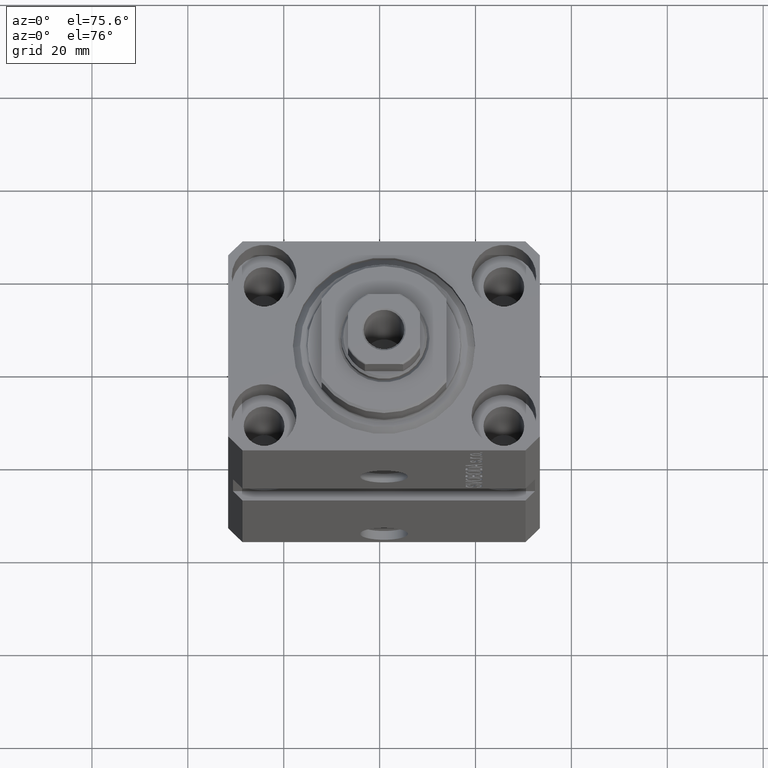
[diagram: clean part render]
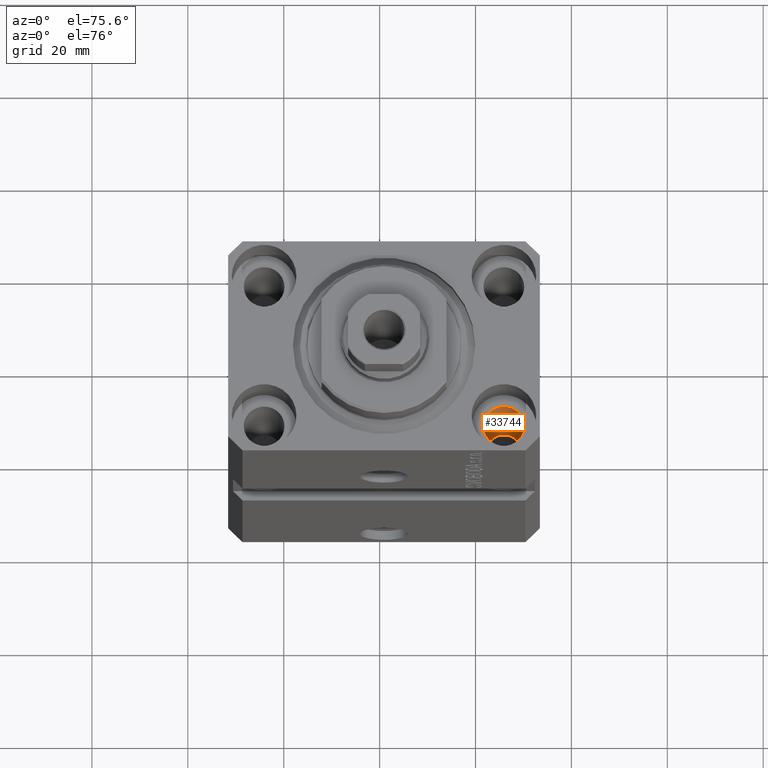
[diagram: same view with one face highlighted and labeled with its STEP entity id]
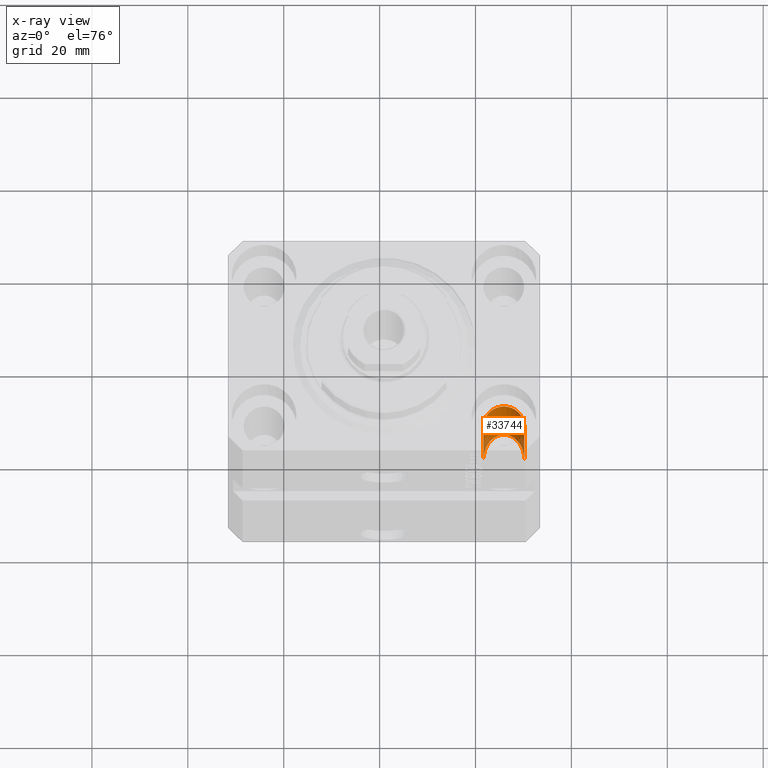
[diagram: x-ray of the same camera — body ghosted, the highlighted face saturated]
A machine part, auxiliary view. The second image highlights one B-rep face of the part: STEP entity #33744.
The next image is the same camera in x-ray: the body ghosted, the highlighted face saturated — about 10% of this face is hidden behind the body in this view.
In plain terms, the highlighted cylindrical surface (edge-blend (fillet) strip) has radius 4.25 mm, axis along (0, 0, 1).
Its self-contained STEP definition (entity closure, byte-faithful):
#747 = EDGE_CURVE ( 'NONE', #21459, #19883, #40305, .T. ) ;
#2236 = ORIENTED_EDGE ( 'NONE', *, *, #38681, .T. ) ;
#2684 = CARTESIAN_POINT ( 'NONE',  ( 20.75000000002254197, -15.00000000000000000, -9.000000000000000000 ) ) ;
#3163 = AXIS2_PLACEMENT_3D ( 'NONE', #22044, #14782, #10426 ) ;
#7472 = EDGE_LOOP ( 'NONE', ( #41150, #39719, #42177, #2236 ) ) ;
#7954 = CARTESIAN_POINT ( 'NONE',  ( 20.75000000001674749, -6.500000000033489655, -28.50000000003348077 ) ) ;
#9381 = VECTOR ( 'NONE', #20375, 1000.000000000000000 ) ;
#10166 = CARTESIAN_POINT ( 'NONE',  ( 20.75000000001675104, -15.00000000000000000, -36.99999999999999289 ) ) ;
#10426 = DIRECTION ( 'NONE',  ( 1.000000000000000000, 0.000000000000000000, 0.000000000000000000 ) ) ;
#11005 = CARTESIAN_POINT ( 'NONE',  ( 29.24999999998326672, -15.00000000000000000, -36.99999999999999289 ) ) ;
#12395 = LINE ( 'NONE', #42195, #9381 ) ;
#13259 = CIRCLE ( 'NONE', #3163, 4.249999999977462473 ) ;
#14782 = DIRECTION ( 'NONE',  ( 0.000000000000000000, 0.000000000000000000, 1.000000000000000000 ) ) ;
#17397 = CYLINDRICAL_SURFACE ( 'NONE', #41825, 4.249999999977462473 ) ;
#18775 = DIRECTION ( 'NONE',  ( -0.000000000000000000, -0.000000000000000000, 1.000000000000000000 ) ) ;
#19883 = VERTEX_POINT ( 'NONE', #11005 ) ;
#20375 = DIRECTION ( 'NONE',  ( -0.000000000000000000, -0.000000000000000000, 1.000000000000000000 ) ) ;
#21459 = VERTEX_POINT ( 'NONE', #42006 ) ;
#22044 = CARTESIAN_POINT ( 'NONE',  ( 25.00000000000000355, -15.00000000000000000, -9.000000000000000000 ) ) ;
#22479 = VERTEX_POINT ( 'NONE', #41779 ) ;
#22499 = CARTESIAN_POINT ( 'NONE',  ( 29.24999999998327027, -6.500000000033487879, -28.50000000003348077 ) ) ;
#24412 = CARTESIAN_POINT ( 'NONE',  ( 25.00000000000000355, -15.00000000000000000, -77.00000000000000000 ) ) ;
#25079 = LINE ( 'NONE', #40111, #36574 ) ;
#33744 = ADVANCED_FACE ( 'NONE', ( #35810 ), #17397, .F. ) ;
#34198 = EDGE_CURVE ( 'NONE', #19883, #22479, #12395, .T. ) ;
#35810 = FACE_OUTER_BOUND ( 'NONE', #7472, .T. ) ;
#36574 = VECTOR ( 'NONE', #18775, 1000.000000000000000 ) ;
#37997 = CARTESIAN_POINT ( 'NONE',  ( 29.24999999998326672, -15.00000000000000000, -36.99999999999999289 ) ) ;
#38681 = EDGE_CURVE ( 'NONE', #22479, #38698, #13259, .T. ) ;
#38698 = VERTEX_POINT ( 'NONE', #2684 ) ;
#39198 = DIRECTION ( 'NONE',  ( 1.000000000000000000, 0.000000000000000000, 0.000000000000000000 ) ) ;
#39719 = ORIENTED_EDGE ( 'NONE', *, *, #747, .T. ) ;
#40111 = CARTESIAN_POINT ( 'NONE',  ( 20.75000000002254197, -15.00000000000000000, -77.00000000000000000 ) ) ;
#40305 =( BOUNDED_CURVE ( )  B_SPLINE_CURVE ( 3, ( #10166, #7954, #22499, #37997 ),
 .UNSPECIFIED., .F., .T. ) 
 B_SPLINE_CURVE_WITH_KNOTS ( ( 4, 4 ),
 ( 4.712388980384689674, 7.853981633974482790 ),
 .UNSPECIFIED. ) 
 CURVE ( )  GEOMETRIC_REPRESENTATION_ITEM ( )  RATIONAL_B_SPLINE_CURVE ( ( 1.000000000000000000, 0.3333333333333333703, 0.3333333333333333703, 1.000000000000000000 ) ) 
 REPRESENTATION_ITEM ( '' )  );
#41150 = ORIENTED_EDGE ( 'NONE', *, *, #41783, .F. ) ;
#41779 = CARTESIAN_POINT ( 'NONE',  ( 29.24999999997746869, -15.00000000000000000, -9.000000000000000000 ) ) ;
#41783 = EDGE_CURVE ( 'NONE', #21459, #38698, #25079, .T. ) ;
#41825 = AXIS2_PLACEMENT_3D ( 'NONE', #24412, #46971, #39198 ) ;
#42006 = CARTESIAN_POINT ( 'NONE',  ( 20.75000000001675104, -15.00000000000000000, -36.99999999999999289 ) ) ;
#42177 = ORIENTED_EDGE ( 'NONE', *, *, #34198, .T. ) ;
#42195 = CARTESIAN_POINT ( 'NONE',  ( 29.24999999997746869, -15.00000000000000000, -77.00000000000000000 ) ) ;
#46971 = DIRECTION ( 'NONE',  ( -0.000000000000000000, -0.000000000000000000, 1.000000000000000000 ) ) ;